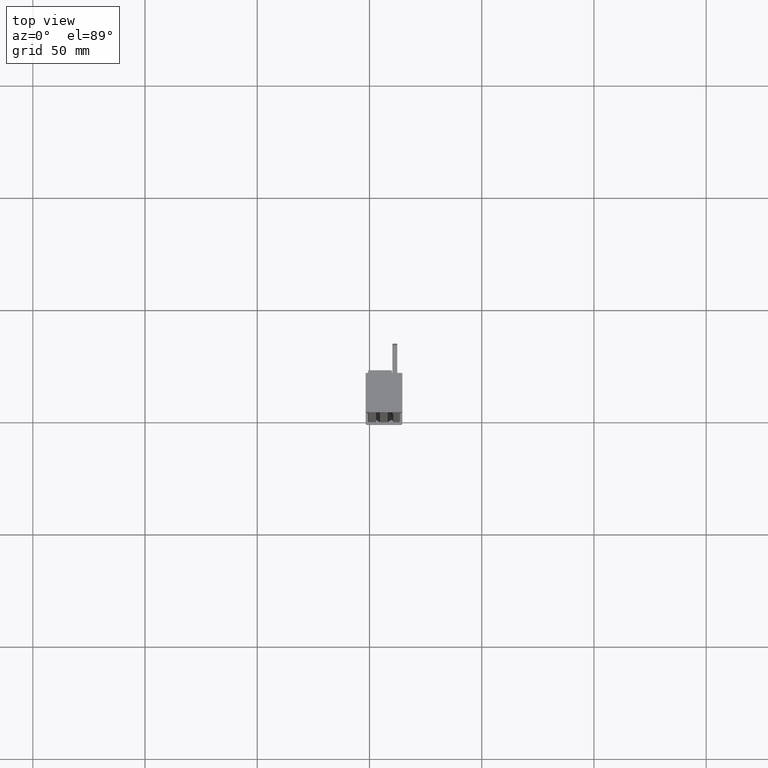
[diagram: clean part render]
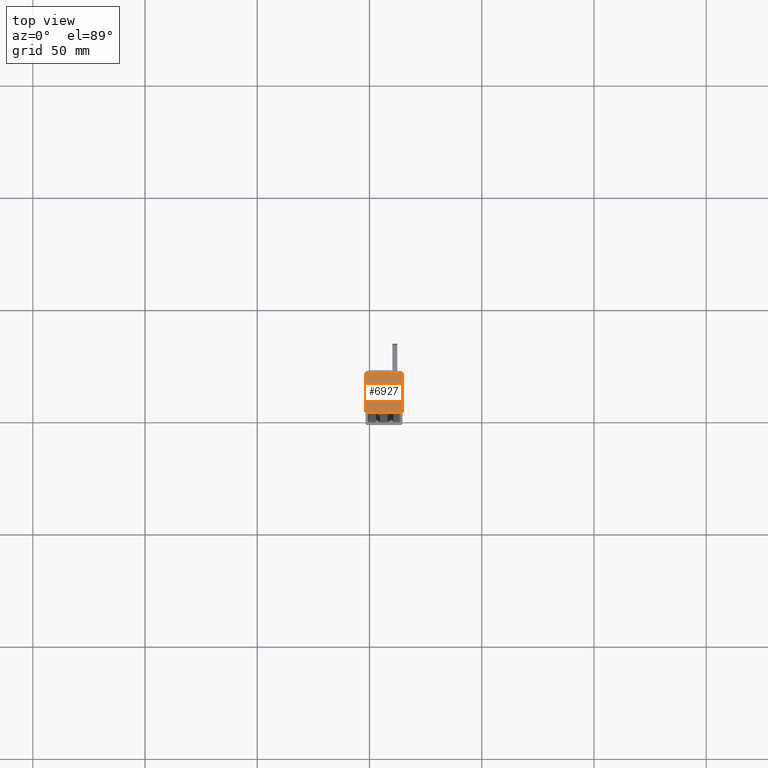
[diagram: same view with one face highlighted and labeled with its STEP entity id]
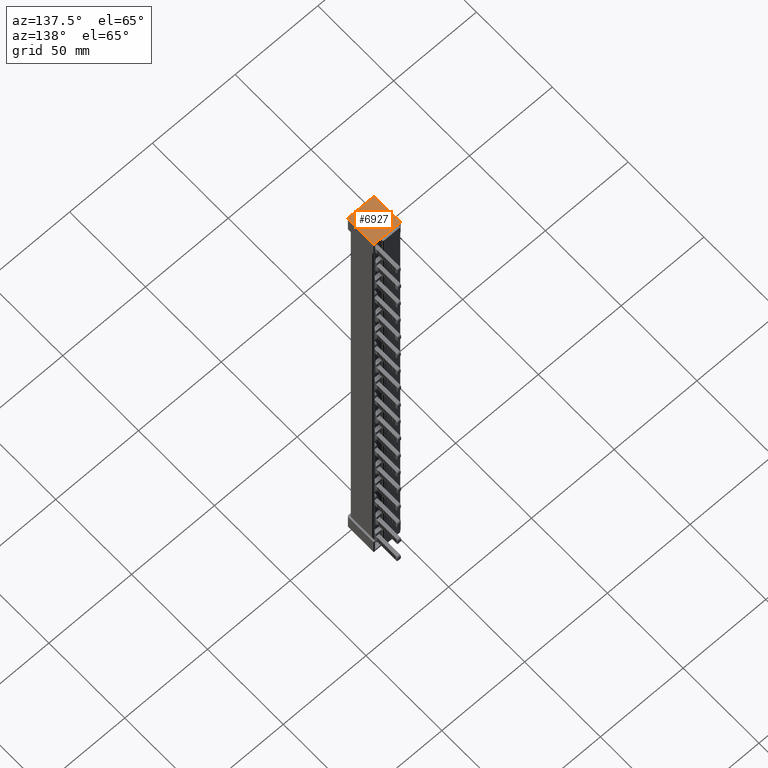
[diagram: same view with one face highlighted and labeled with its STEP entity id]
A machine part, top view. The second image highlights one B-rep face of the part: STEP entity #6927.
A second angle (auxiliary view) of the same face is appended — the face is thin or edge-on in the first view.
In plain terms, the highlighted planar face has unit normal (-0, 0, -1).
Its self-contained STEP definition (entity closure, byte-faithful):
#892 = EDGE_CURVE ( 'NONE', #11693, #11679, #24967, .T. ) ;
#893 = EDGE_CURVE ( 'NONE', #11780, #11689, #24969, .T. ) ;
#966 = EDGE_CURVE ( 'NONE', #11712, #11702, #25075, .T. ) ;
#993 = EDGE_CURVE ( 'NONE', #11780, #11679, #1560, .T. ) ;
#1014 = EDGE_CURVE ( 'NONE', #11712, #11689, #1632, .T. ) ;
#1025 = EDGE_CURVE ( 'NONE', #11702, #11763, #1644, .T. ) ;
#1052 = EDGE_CURVE ( 'NONE', #11785, #11693, #1732, .T. ) ;
#1108 = EDGE_CURVE ( 'NONE', #11763, #11785, #24285, .T. ) ;
#1550 = DIRECTION ( 'NONE',  ( 1.000000000000000000, 0.0000000000000000000, -0.0000000000000000000 ) ) ;
#1556 = CARTESIAN_POINT ( 'NONE',  ( 6.466000000104061800, -1.000000000000389500, 219.0000000000590600 ) ) ;
#1560 = LINE ( 'NONE', #1556, #25118 ) ;
#1609 = CARTESIAN_POINT ( 'NONE',  ( -1.733999999890744900, -11.04623440810184900, 219.0000000000594300 ) ) ;
#1625 = DIRECTION ( 'NONE',  ( -0.0000000000000000000, -1.000000000000000000, -0.0000000000000000000 ) ) ;
#1632 = LINE ( 'NONE', #1609, #25108 ) ;
#1644 = LINE ( 'NONE', #1648, #24237 ) ;
#1648 = CARTESIAN_POINT ( 'NONE',  ( 6.466000000104061800, 16.49999999999970900, 219.0000000000593700 ) ) ;
#1651 = DIRECTION ( 'NONE',  ( 1.000000000000000000, 0.0000000000000000000, -0.0000000000000000000 ) ) ;
#1710 = CARTESIAN_POINT ( 'NONE',  ( 14.66600000010918100, -11.04623440810184900, 219.0000000000513000 ) ) ;
#1732 = LINE ( 'NONE', #1710, #24221 ) ;
#1742 = DIRECTION ( 'NONE',  ( -0.0000000000000000000, -1.000000000000000000, -0.0000000000000000000 ) ) ;
#1909 = DIRECTION ( 'NONE',  ( -4.965472477636011600E-013, -0.0000000000000000000, -1.000000000000000000 ) ) ;
#1913 = DIRECTION ( 'NONE',  ( 1.000000000000000000, 0.0000000000000000000, -5.551115123128320200E-013 ) ) ;
#1928 = CARTESIAN_POINT ( 'NONE',  ( 14.46600000010933800, 16.29999999999973100, 219.0000000000553900 ) ) ;
#2326 = CARTESIAN_POINT ( 'NONE',  ( -1.533999999890739200, 16.29999999999973100, 219.0000000000593200 ) ) ;
#2331 = DIRECTION ( 'NONE',  ( -4.965472477636011600E-013, -0.0000000000000000000, -1.000000000000000000 ) ) ;
#2347 = DIRECTION ( 'NONE',  ( 1.000000000000000000, 0.0000000000000000000, -5.551115123126008900E-013 ) ) ;
#4579 = CARTESIAN_POINT ( 'NONE',  ( 6.466000000109233700, -11.04623440810184900, 219.0000000000553700 ) ) ;
#4588 = DIRECTION ( 'NONE',  ( -4.965472477636011600E-013, 0.0000000000000000000, -1.000000000000000000 ) ) ;
#4591 = FACE_OUTER_BOUND ( 'NONE', #21594, .T. ) ;
#4594 = DIRECTION ( 'NONE',  ( -1.000000000000000000, 0.0000000000000000000, 4.965472477636011600E-013 ) ) ;
#4620 = PLANE ( 'NONE',  #32078 ) ;
#6927 = ADVANCED_FACE ( 'NONE', ( #4591 ), #4620, .F. ) ;
#10374 = ORIENTED_EDGE ( 'NONE', *, *, #893, .F. ) ;
#10476 = ORIENTED_EDGE ( 'NONE', *, *, #1014, .T. ) ;
#10519 = ORIENTED_EDGE ( 'NONE', *, *, #892, .F. ) ;
#10521 = ORIENTED_EDGE ( 'NONE', *, *, #993, .T. ) ;
#10525 = ORIENTED_EDGE ( 'NONE', *, *, #1025, .F. ) ;
#10535 = ORIENTED_EDGE ( 'NONE', *, *, #966, .F. ) ;
#10540 = ORIENTED_EDGE ( 'NONE', *, *, #1052, .F. ) ;
#10554 = ORIENTED_EDGE ( 'NONE', *, *, #1108, .F. ) ;
#11679 = VERTEX_POINT ( 'NONE', #15894 ) ;
#11689 = VERTEX_POINT ( 'NONE', #15938 ) ;
#11693 = VERTEX_POINT ( 'NONE', #15962 ) ;
#11702 = VERTEX_POINT ( 'NONE', #15916 ) ;
#11712 = VERTEX_POINT ( 'NONE', #15966 ) ;
#11763 = VERTEX_POINT ( 'NONE', #16128 ) ;
#11780 = VERTEX_POINT ( 'NONE', #16063 ) ;
#11785 = VERTEX_POINT ( 'NONE', #16118 ) ;
#14223 = CARTESIAN_POINT ( 'NONE',  ( 13.91600000010917500, -0.2500000000003888000, 219.0000000000516400 ) ) ;
#14226 = DIRECTION ( 'NONE',  ( -4.965472477636011600E-013, -0.0000000000000000000, -1.000000000000000000 ) ) ;
#14233 = DIRECTION ( 'NONE',  ( -4.965472477636011600E-013, -0.0000000000000000000, -1.000000000000000000 ) ) ;
#14234 = CARTESIAN_POINT ( 'NONE',  ( -0.9839999998907443800, -0.2500000000002777800, 219.0000000000590600 ) ) ;
#14235 = DIRECTION ( 'NONE',  ( 1.000000000000000000, 8.673617379883383700E-016, -4.810966440041983200E-013 ) ) ;
#14241 = DIRECTION ( 'NONE',  ( 1.000000000000000000, 0.0000000000000000000, -4.810966440042340600E-013 ) ) ;
#15894 = CARTESIAN_POINT ( 'NONE',  ( 13.91600000010917700, -1.000000000000389500, 219.0000000000553400 ) ) ;
#15916 = CARTESIAN_POINT ( 'NONE',  ( -1.533999999893321100, 16.49999999999970900, 219.0000000000593400 ) ) ;
#15938 = CARTESIAN_POINT ( 'NONE',  ( -1.733999999890744900, -0.2500000000002777800, 219.0000000000594300 ) ) ;
#15962 = CARTESIAN_POINT ( 'NONE',  ( 14.66600000010918100, -0.2500000000003888000, 219.0000000000513000 ) ) ;
#15966 = CARTESIAN_POINT ( 'NONE',  ( -1.733999999890744900, 16.29999999999973100, 219.0000000000594300 ) ) ;
#16063 = CARTESIAN_POINT ( 'NONE',  ( -0.9839999998933263200, -1.000000000000389500, 219.0000000000590600 ) ) ;
#16118 = CARTESIAN_POINT ( 'NONE',  ( 14.66600000010918100, 16.29999999999973100, 219.0000000000532900 ) ) ;
#16128 = CARTESIAN_POINT ( 'NONE',  ( 14.46600000010933900, 16.49999999999970900, 219.0000000000574100 ) ) ;
#21594 = EDGE_LOOP ( 'NONE', ( #10476, #10374, #10521, #10519, #10540, #10554, #10525, #10535 ) ) ;
#24221 = VECTOR ( 'NONE', #1742, 1000.000000000000000 ) ;
#24237 = VECTOR ( 'NONE', #1651, 1000.000000000000000 ) ;
#24285 = CIRCLE ( 'NONE', #24292, 0.1999999999999085800 ) ;
#24292 = AXIS2_PLACEMENT_3D ( 'NONE', #1928, #1909, #1913 ) ;
#24967 = CIRCLE ( 'NONE', #24990, 0.7500000000000006700 ) ;
#24969 = CIRCLE ( 'NONE', #25017, 0.7500000000000564000 ) ;
#24990 = AXIS2_PLACEMENT_3D ( 'NONE', #14223, #14233, #14241 ) ;
#25017 = AXIS2_PLACEMENT_3D ( 'NONE', #14234, #14226, #14235 ) ;
#25075 = CIRCLE ( 'NONE', #25077, 0.1999999999999918500 ) ;
#25077 = AXIS2_PLACEMENT_3D ( 'NONE', #2326, #2331, #2347 ) ;
#25108 = VECTOR ( 'NONE', #1625, 1000.000000000000000 ) ;
#25118 = VECTOR ( 'NONE', #1550, 1000.000000000000000 ) ;
#32078 = AXIS2_PLACEMENT_3D ( 'NONE', #4579, #4588, #4594 ) ;